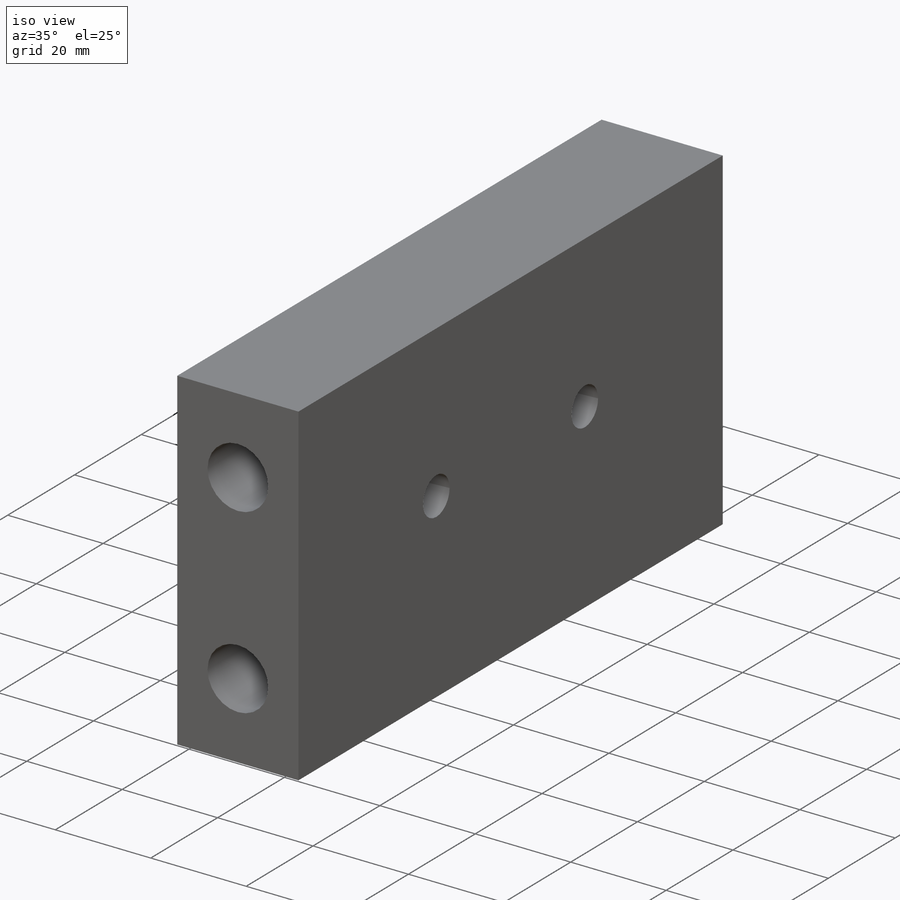
[diagram: iso view]
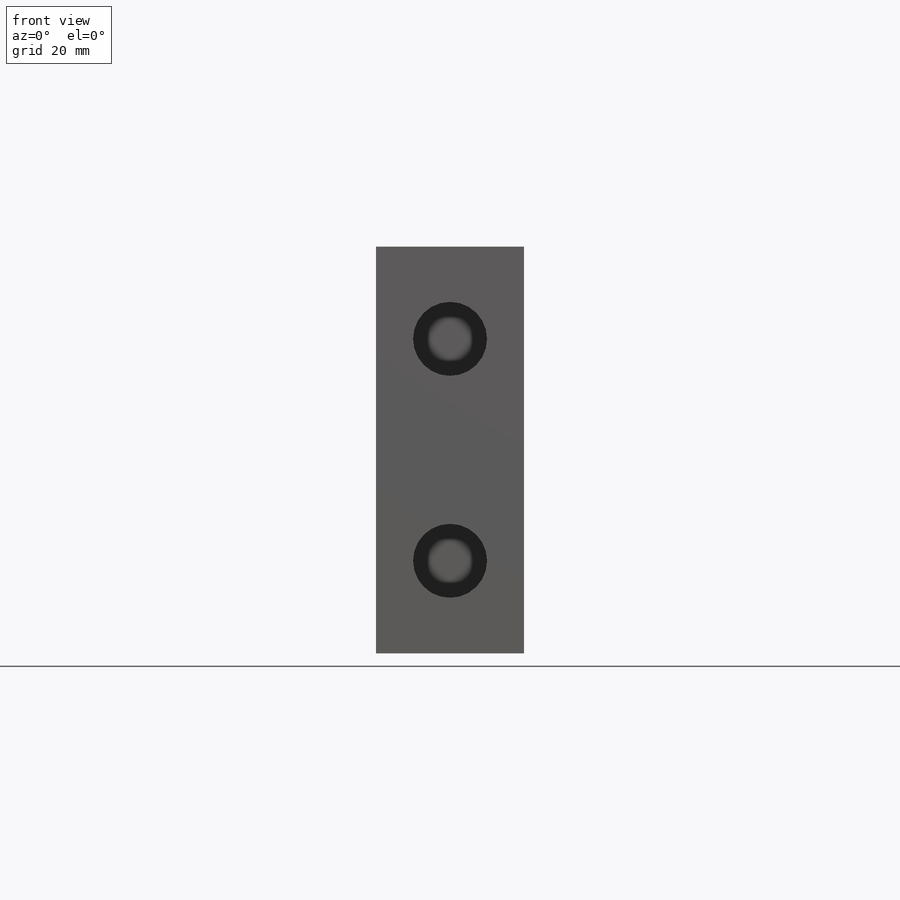
[diagram: front view]
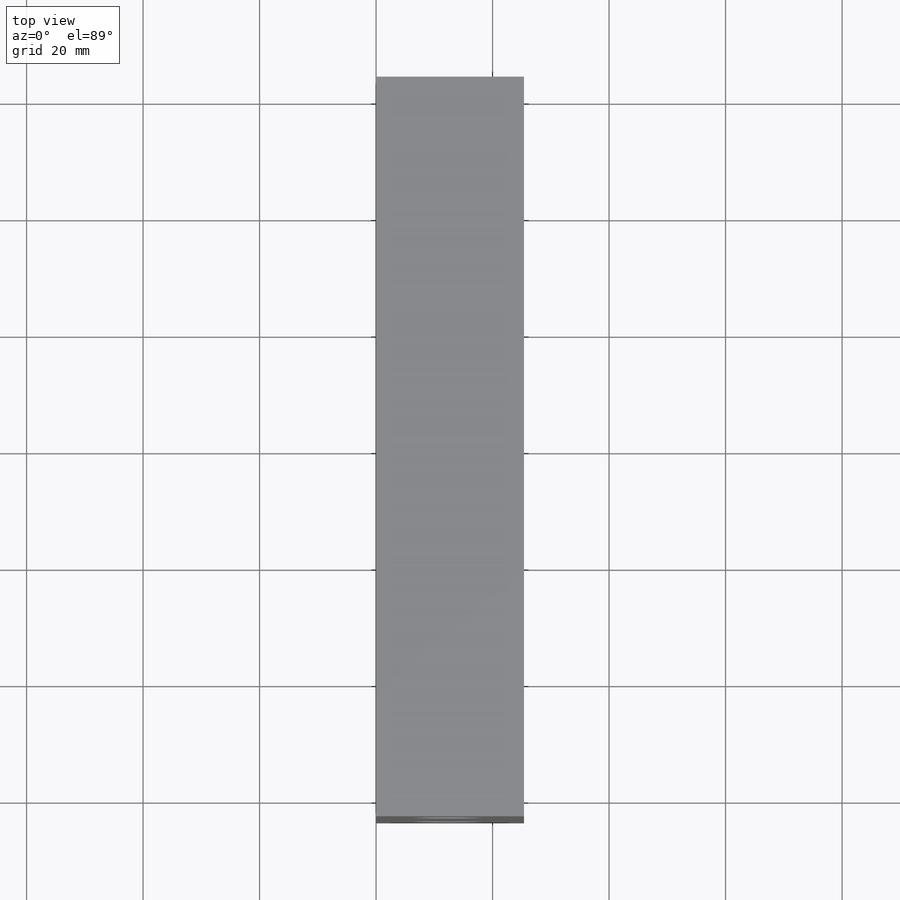
[diagram: top view]
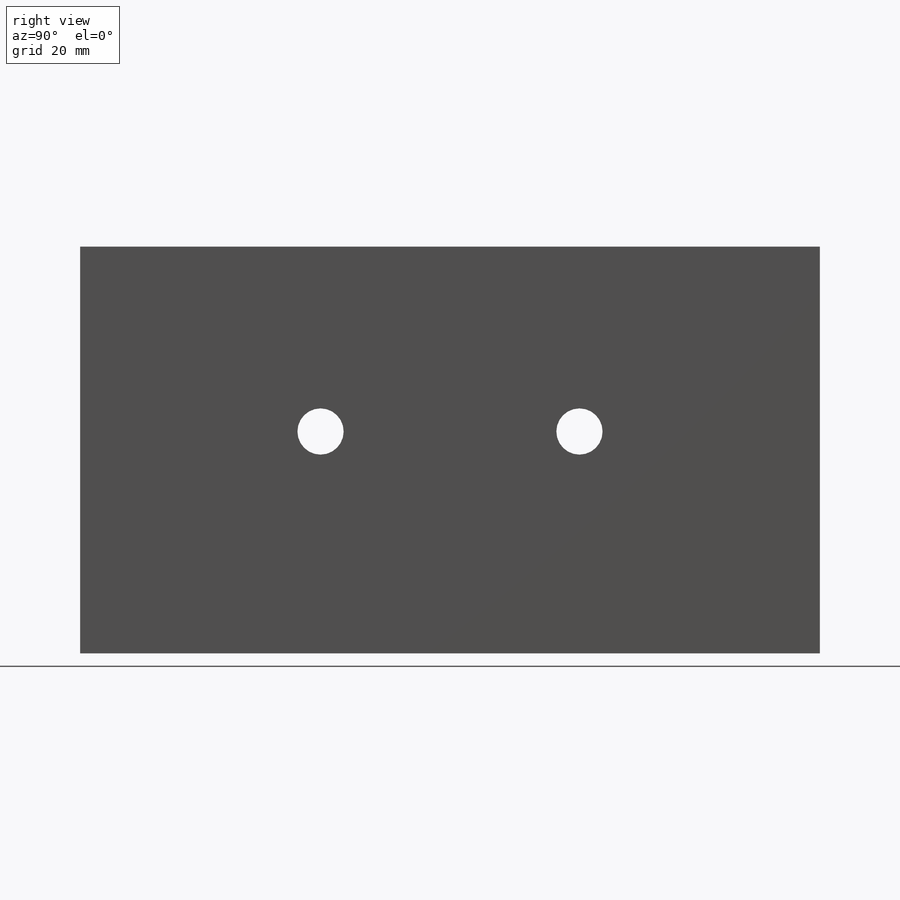
[diagram: right view]
SOLIDWORKS PART (.sldprt)
format: sldprt  version: not decoded by parser v0  size: 169,472 bytes
history: native  units: mm
features: sketch x3, cut_extrude x2, material x1, extrude x1, mirror x1 (+13 scaffold rows collapsed)
feature tree (21):
  scaffold x13  (default folders/planes/origin — collapsed)
  material  "6061-T6 (SS)"
  sketch  "Sketch1"  dims[c1.D1=~26.102637mm c1.D2=~4.050409mm c2.D1=~42.079251mm c2.D2=~73.357412mm c3.D1=127.0mm c3.D2=69.85mm]
  extrude  "Boss-Extrude1"  Depth=25.4mm
  sketch  "Sketch2"  dims[c1.D1=12.7mm c1.D2=12.7mm c2.D1=~206.564844mm c2.D3=15.875mm c2.D4=15.875mm]
  cut_extrude  "Cut-Extrude1"  Depth=25.4mm
  mirror  "Mirror1"
  sketch  "Sketch3"  dims[c1.D1=~7.732998mm c1.D2=7.9375mm c1.D3=7.9375mm c1.D4=7.9375mm c1.D5=7.9375mm c2.D3=7.9375mm c2.D1=44.45mm c3.D3=22.225mm c3.D4=31.75mm c3.D5=31.75mm c4.D3=22.225mm]
  cut_extrude  "Cut-Extrude2"  Depth=2.54mm
decode coverage: 6 of 7 modeling features carry decoded parameters
note: ~ marks probable driven/reference dimensions
note: suppression state not decoded; provenance and decode notes live in map.json
